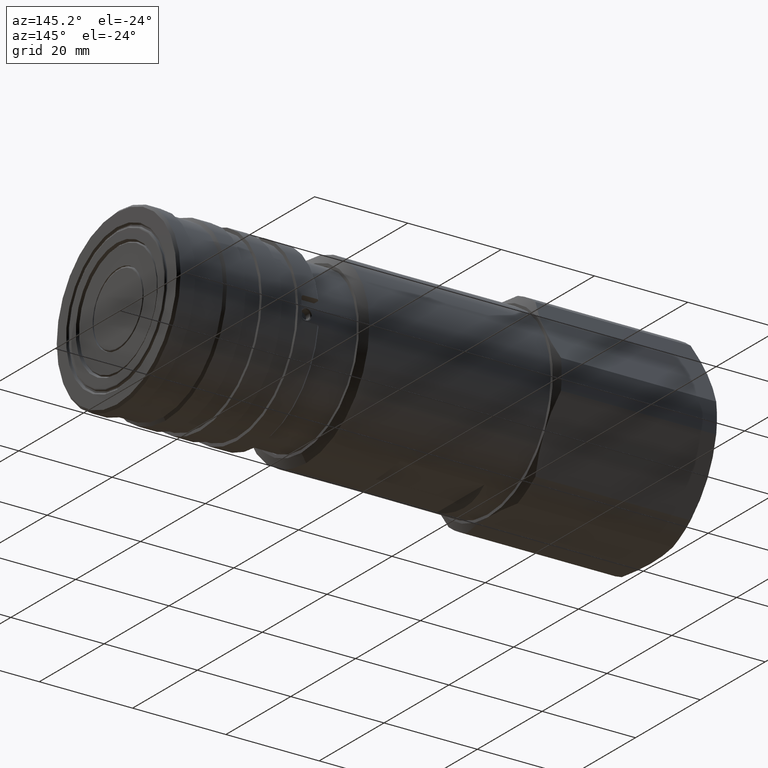
[diagram: clean part render]
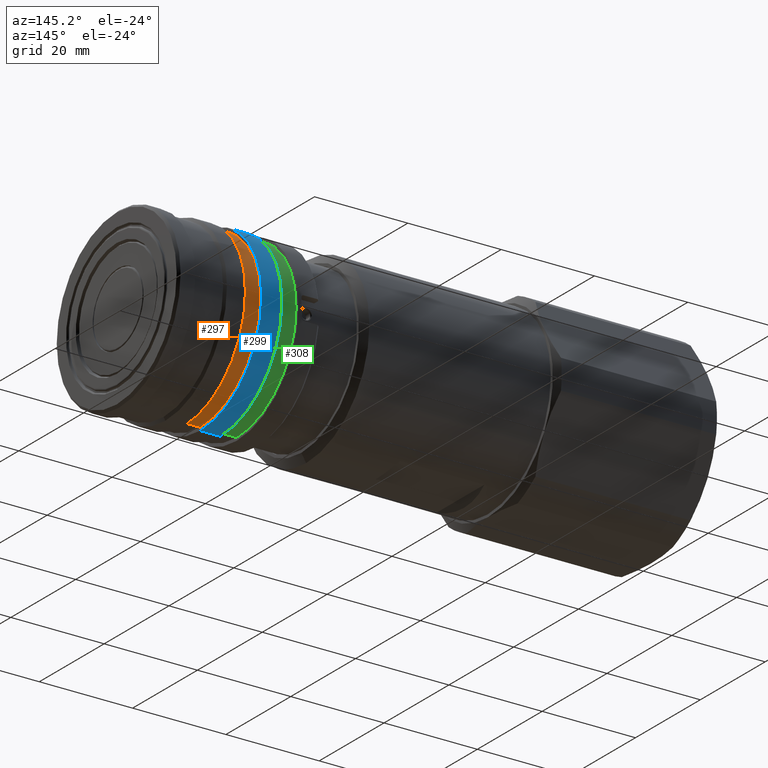
[diagram: same view with three faces highlighted in distinct colors, each labeled with its STEP entity id]
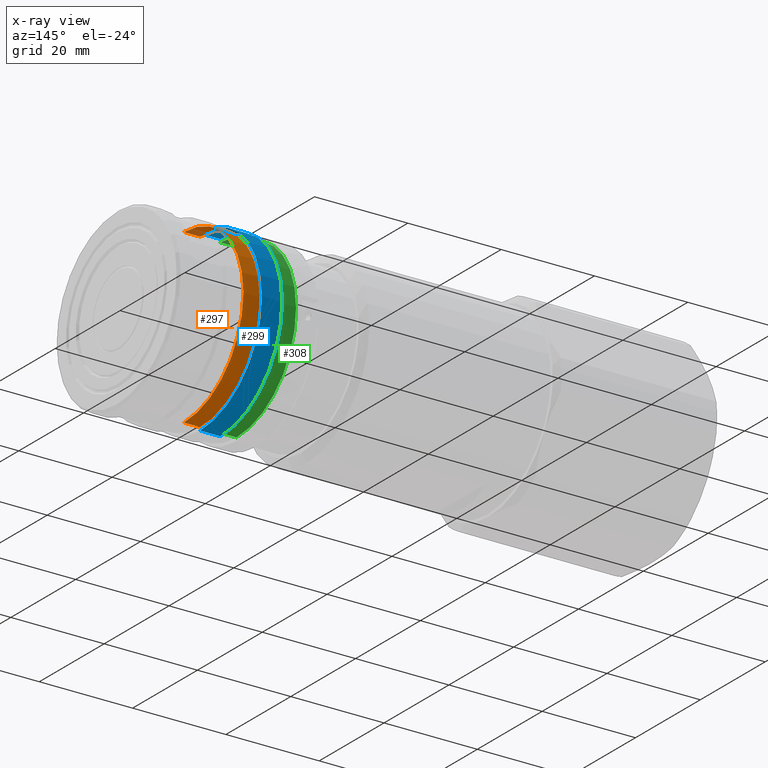
[diagram: x-ray of the same camera — body ghosted, the three highlighted faces saturated]
A machine part, auxiliary view with three faces highlighted in distinct colors.
The next image is the same camera in x-ray (body ghosted, the three faces saturated) — at least one of them is partly hidden behind the body in this view.
Their STEP definitions:

[orange] entity #297 — the highlighted cylindrical surface (partial cylindrical patch) has radius 18.35 mm, axis along (-1, -0, -0).
#11 = CARTESIAN_POINT ( 'NONE',  ( 34.99999999999999300, 0.0000000000000000000, 0.0000000000000000000 ) ) ;
#12 = DIRECTION ( 'NONE',  ( -1.000000000000000000, -0.0000000000000000000, -0.0000000000000000000 ) ) ;
#13 = DIRECTION ( 'NONE',  ( 0.0000000000000000000, 0.0000000000000000000, 1.000000000000000000 ) ) ;
#161 = CARTESIAN_POINT ( 'NONE',  ( 38.49999999999999300, 0.0000000000000000000, 0.0000000000000000000 ) ) ;
#163 = DIRECTION ( 'NONE',  ( -1.000000000000000000, -0.0000000000000000000, -0.0000000000000000000 ) ) ;
#164 = DIRECTION ( 'NONE',  ( 0.0000000000000000000, 0.0000000000000000000, 1.000000000000000000 ) ) ;
#297 = ADVANCED_FACE ( 'NONE', ( #2326 ), #2327, .T. ) ;
#497 = CARTESIAN_POINT ( 'NONE',  ( 22.39999999999999500, 0.0000000000000000000, 18.35000000000000100 ) ) ;
#498 = DIRECTION ( 'NONE',  ( -1.000000000000000000, -0.0000000000000000000, -0.0000000000000000000 ) ) ;
#841 = CARTESIAN_POINT ( 'NONE',  ( 22.39999999999999500, 2.247226876435393400E-015, -18.35000000000000100 ) ) ;
#842 = DIRECTION ( 'NONE',  ( -1.000000000000000000, -0.0000000000000000000, -0.0000000000000000000 ) ) ;
#1006 = CARTESIAN_POINT ( 'NONE',  ( 34.99999999999999300, 2.247226876435393400E-015, -18.35000000000000100 ) ) ;
#1055 = CARTESIAN_POINT ( 'NONE',  ( 38.49999999999999300, 0.0000000000000000000, 18.35000000000000100 ) ) ;
#1078 = CARTESIAN_POINT ( 'NONE',  ( 38.49999999999999300, 2.247226876435393400E-015, -18.35000000000000100 ) ) ;
#1085 = CARTESIAN_POINT ( 'NONE',  ( 34.99999999999999300, 0.0000000000000000000, 18.35000000000000100 ) ) ;
#1252 = ORIENTED_EDGE ( 'NONE', *, *, #1684, .T. ) ;
#1260 = ORIENTED_EDGE ( 'NONE', *, *, #1352, .F. ) ;
#1262 = ORIENTED_EDGE ( 'NONE', *, *, #1778, .F. ) ;
#1278 = ORIENTED_EDGE ( 'NONE', *, *, #1974, .T. ) ;
#1352 = EDGE_CURVE ( 'NONE', #3631, #3552, #2671, .T. ) ;
#1497 = LINE ( 'NONE', #841, #1498 ) ;
#1498 = VECTOR ( 'NONE', #842, 1000.000000000000000 ) ;
#1684 = EDGE_CURVE ( 'NONE', #3601, #3624, #2717, .T. ) ;
#1778 = EDGE_CURVE ( 'NONE', #3601, #3631, #2815, .T. ) ;
#1974 = EDGE_CURVE ( 'NONE', #3624, #3552, #1497, .T. ) ;
#2063 = EDGE_LOOP ( 'NONE', ( #1252, #1278, #1260, #1262 ) ) ;
#2326 = FACE_OUTER_BOUND ( 'NONE', #2063, .T. ) ;
#2327 = CYLINDRICAL_SURFACE ( 'NONE', #2473, 18.35000000000000100 ) ;
#2473 = AXIS2_PLACEMENT_3D ( 'NONE', #3372, #3373, #3374 ) ;
#2496 = AXIS2_PLACEMENT_3D ( 'NONE', #11, #12, #13 ) ;
#2510 = AXIS2_PLACEMENT_3D ( 'NONE', #161, #163, #164 ) ;
#2671 = CIRCLE ( 'NONE', #2496, 18.35000000000000100 ) ;
#2717 = CIRCLE ( 'NONE', #2510, 18.35000000000000100 ) ;
#2815 = LINE ( 'NONE', #497, #2817 ) ;
#2817 = VECTOR ( 'NONE', #498, 1000.000000000000000 ) ;
#3372 = CARTESIAN_POINT ( 'NONE',  ( 22.39999999999999500, 0.0000000000000000000, 0.0000000000000000000 ) ) ;
#3373 = DIRECTION ( 'NONE',  ( -1.000000000000000000, -0.0000000000000000000, -0.0000000000000000000 ) ) ;
#3374 = DIRECTION ( 'NONE',  ( 0.0000000000000000000, 0.0000000000000000000, 1.000000000000000000 ) ) ;
#3552 = VERTEX_POINT ( 'NONE', #1006 ) ;
#3601 = VERTEX_POINT ( 'NONE', #1055 ) ;
#3624 = VERTEX_POINT ( 'NONE', #1078 ) ;
#3631 = VERTEX_POINT ( 'NONE', #1085 ) ;

[blue] entity #299 — the highlighted cylindrical surface (partial cylindrical patch) has radius 19 mm, axis along (-1, -0, -0).
#59 = CARTESIAN_POINT ( 'NONE',  ( 30.69999999999999600, 0.0000000000000000000, 0.0000000000000000000 ) ) ;
#61 = DIRECTION ( 'NONE',  ( -1.000000000000000000, -0.0000000000000000000, -0.0000000000000000000 ) ) ;
#62 = DIRECTION ( 'NONE',  ( 0.0000000000000000000, 0.0000000000000000000, 1.000000000000000000 ) ) ;
#232 = CARTESIAN_POINT ( 'NONE',  ( 22.39999999999999500, 2.326828918379971000E-015, -19.00000000000000000 ) ) ;
#234 = DIRECTION ( 'NONE',  ( -1.000000000000000000, -0.0000000000000000000, -0.0000000000000000000 ) ) ;
#295 = CARTESIAN_POINT ( 'NONE',  ( 34.99999999999999300, 0.0000000000000000000, 0.0000000000000000000 ) ) ;
#296 = DIRECTION ( 'NONE',  ( -1.000000000000000000, -0.0000000000000000000, -0.0000000000000000000 ) ) ;
#298 = DIRECTION ( 'NONE',  ( 0.0000000000000000000, 0.0000000000000000000, 1.000000000000000000 ) ) ;
#299 = ADVANCED_FACE ( 'NONE', ( #2328 ), #2329, .T. ) ;
#909 = CARTESIAN_POINT ( 'NONE',  ( 22.39999999999999500, 0.0000000000000000000, 19.00000000000000000 ) ) ;
#910 = DIRECTION ( 'NONE',  ( -1.000000000000000000, -0.0000000000000000000, -0.0000000000000000000 ) ) ;
#1051 = CARTESIAN_POINT ( 'NONE',  ( 30.69999999999999600, 2.326828918379971000E-015, -19.00000000000000000 ) ) ;
#1066 = CARTESIAN_POINT ( 'NONE',  ( 34.99999999999999300, 0.0000000000000000000, 19.00000000000000000 ) ) ;
#1070 = CARTESIAN_POINT ( 'NONE',  ( 34.99999999999999300, 2.326828918379971000E-015, -19.00000000000000000 ) ) ;
#1074 = CARTESIAN_POINT ( 'NONE',  ( 30.69999999999999600, 0.0000000000000000000, 19.00000000000000000 ) ) ;
#1246 = ORIENTED_EDGE ( 'NONE', *, *, #1699, .T. ) ;
#1254 = ORIENTED_EDGE ( 'NONE', *, *, #1363, .F. ) ;
#1267 = ORIENTED_EDGE ( 'NONE', *, *, #2342, .F. ) ;
#1280 = ORIENTED_EDGE ( 'NONE', *, *, #1710, .T. ) ;
#1363 = EDGE_CURVE ( 'NONE', #3620, #3597, #2682, .T. ) ;
#1514 = LINE ( 'NONE', #909, #1516 ) ;
#1516 = VECTOR ( 'NONE', #910, 1000.000000000000000 ) ;
#1699 = EDGE_CURVE ( 'NONE', #3616, #3597, #2738, .T. ) ;
#1710 = EDGE_CURVE ( 'NONE', #3612, #3616, #2753, .T. ) ;
#2092 = EDGE_LOOP ( 'NONE', ( #1280, #1246, #1254, #1267 ) ) ;
#2328 = FACE_OUTER_BOUND ( 'NONE', #2092, .T. ) ;
#2329 = CYLINDRICAL_SURFACE ( 'NONE', #2474, 19.00000000000000000 ) ;
#2342 = EDGE_CURVE ( 'NONE', #3612, #3620, #1514, .T. ) ;
#2474 = AXIS2_PLACEMENT_3D ( 'NONE', #3375, #3376, #3377 ) ;
#2500 = AXIS2_PLACEMENT_3D ( 'NONE', #59, #61, #62 ) ;
#2521 = AXIS2_PLACEMENT_3D ( 'NONE', #295, #296, #298 ) ;
#2682 = CIRCLE ( 'NONE', #2500, 19.00000000000000000 ) ;
#2738 = LINE ( 'NONE', #232, #2739 ) ;
#2739 = VECTOR ( 'NONE', #234, 1000.000000000000000 ) ;
#2753 = CIRCLE ( 'NONE', #2521, 19.00000000000000000 ) ;
#3375 = CARTESIAN_POINT ( 'NONE',  ( 22.39999999999999500, 0.0000000000000000000, 0.0000000000000000000 ) ) ;
#3376 = DIRECTION ( 'NONE',  ( -1.000000000000000000, -0.0000000000000000000, -0.0000000000000000000 ) ) ;
#3377 = DIRECTION ( 'NONE',  ( 0.0000000000000000000, 0.0000000000000000000, 1.000000000000000000 ) ) ;
#3597 = VERTEX_POINT ( 'NONE', #1051 ) ;
#3612 = VERTEX_POINT ( 'NONE', #1066 ) ;
#3616 = VERTEX_POINT ( 'NONE', #1070 ) ;
#3620 = VERTEX_POINT ( 'NONE', #1074 ) ;

[green] entity #308 — the highlighted cylindrical surface (partial cylindrical patch) has radius 18.35 mm, axis along (-1, -0, -0).
#167 = CARTESIAN_POINT ( 'NONE',  ( 22.39999999999999500, 0.0000000000000000000, 18.35000000000000100 ) ) ;
#168 = DIRECTION ( 'NONE',  ( -1.000000000000000000, -0.0000000000000000000, -0.0000000000000000000 ) ) ;
#308 = ADVANCED_FACE ( 'NONE', ( #2640 ), #2641, .T. ) ;
#402 = CARTESIAN_POINT ( 'NONE',  ( 22.39999999999999500, 2.247226876435393400E-015, -18.35000000000000100 ) ) ;
#403 = DIRECTION ( 'NONE',  ( -1.000000000000000000, -0.0000000000000000000, -0.0000000000000000000 ) ) ;
#830 = CARTESIAN_POINT ( 'NONE',  ( 30.69999999999999600, 0.0000000000000000000, 0.0000000000000000000 ) ) ;
#831 = DIRECTION ( 'NONE',  ( -1.000000000000000000, -0.0000000000000000000, -0.0000000000000000000 ) ) ;
#832 = DIRECTION ( 'NONE',  ( 0.0000000000000000000, 0.0000000000000000000, 1.000000000000000000 ) ) ;
#1004 = CARTESIAN_POINT ( 'NONE',  ( 30.69999999999999600, 0.0000000000000000000, 18.35000000000000100 ) ) ;
#1058 = CARTESIAN_POINT ( 'NONE',  ( 30.69999999999999600, 2.247226876435393400E-015, -18.35000000000000100 ) ) ;
#1088 = CARTESIAN_POINT ( 'NONE',  ( 27.19999999999999600, 2.247226876435393400E-015, -18.35000000000000100 ) ) ;
#1089 = CARTESIAN_POINT ( 'NONE',  ( 27.19999999999999600, 0.0000000000000000000, 18.35000000000000100 ) ) ;
#1093 = CARTESIAN_POINT ( 'NONE',  ( 27.19999999999999600, 0.0000000000000000000, 0.0000000000000000000 ) ) ;
#1094 = DIRECTION ( 'NONE',  ( -1.000000000000000000, -0.0000000000000000000, -0.0000000000000000000 ) ) ;
#1095 = DIRECTION ( 'NONE',  ( 0.0000000000000000000, 0.0000000000000000000, 1.000000000000000000 ) ) ;
#1248 = ORIENTED_EDGE ( 'NONE', *, *, #1970, .T. ) ;
#1249 = ORIENTED_EDGE ( 'NONE', *, *, #1734, .T. ) ;
#1257 = ORIENTED_EDGE ( 'NONE', *, *, #3640, .F. ) ;
#1265 = ORIENTED_EDGE ( 'NONE', *, *, #1685, .F. ) ;
#1492 = CIRCLE ( 'NONE', #2588, 18.35000000000000100 ) ;
#1546 = CIRCLE ( 'NONE', #2610, 18.35000000000000100 ) ;
#1685 = EDGE_CURVE ( 'NONE', #3550, #3635, #2716, .T. ) ;
#1734 = EDGE_CURVE ( 'NONE', #3604, #3634, #2779, .T. ) ;
#1970 = EDGE_CURVE ( 'NONE', #3550, #3604, #1492, .T. ) ;
#2090 = EDGE_LOOP ( 'NONE', ( #1248, #1249, #1257, #1265 ) ) ;
#2478 = AXIS2_PLACEMENT_3D ( 'NONE', #3387, #3388, #3389 ) ;
#2588 = AXIS2_PLACEMENT_3D ( 'NONE', #830, #831, #832 ) ;
#2610 = AXIS2_PLACEMENT_3D ( 'NONE', #1093, #1094, #1095 ) ;
#2640 = FACE_OUTER_BOUND ( 'NONE', #2090, .T. ) ;
#2641 = CYLINDRICAL_SURFACE ( 'NONE', #2478, 18.35000000000000100 ) ;
#2716 = LINE ( 'NONE', #167, #2718 ) ;
#2718 = VECTOR ( 'NONE', #168, 1000.000000000000000 ) ;
#2779 = LINE ( 'NONE', #402, #2780 ) ;
#2780 = VECTOR ( 'NONE', #403, 1000.000000000000000 ) ;
#3387 = CARTESIAN_POINT ( 'NONE',  ( 22.39999999999999500, 0.0000000000000000000, 0.0000000000000000000 ) ) ;
#3388 = DIRECTION ( 'NONE',  ( -1.000000000000000000, -0.0000000000000000000, -0.0000000000000000000 ) ) ;
#3389 = DIRECTION ( 'NONE',  ( 0.0000000000000000000, 0.0000000000000000000, 1.000000000000000000 ) ) ;
#3550 = VERTEX_POINT ( 'NONE', #1004 ) ;
#3604 = VERTEX_POINT ( 'NONE', #1058 ) ;
#3634 = VERTEX_POINT ( 'NONE', #1088 ) ;
#3635 = VERTEX_POINT ( 'NONE', #1089 ) ;
#3640 = EDGE_CURVE ( 'NONE', #3635, #3634, #1546, .T. ) ;